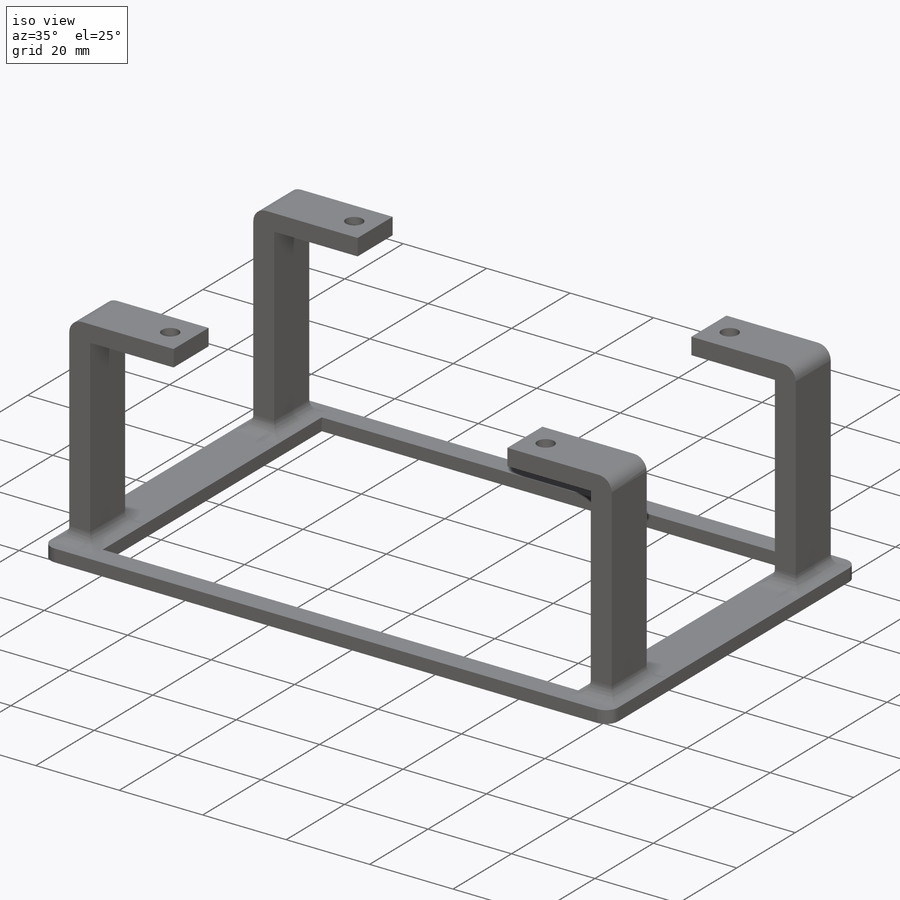
[diagram: iso view]
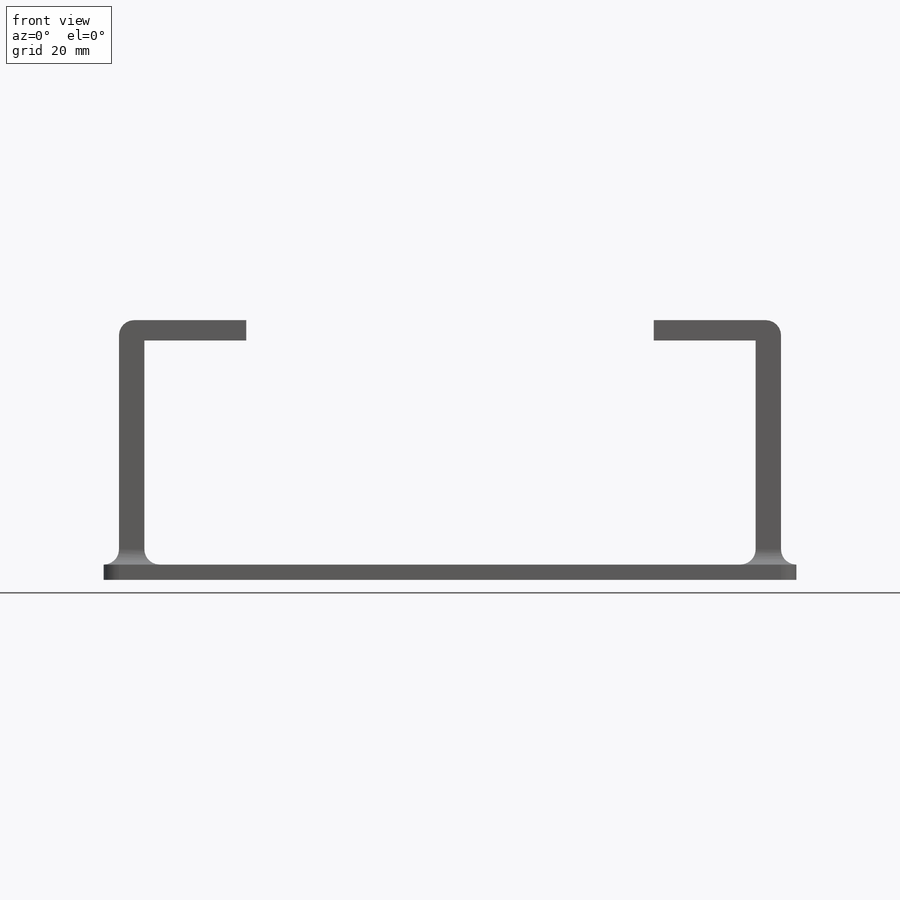
[diagram: front view]
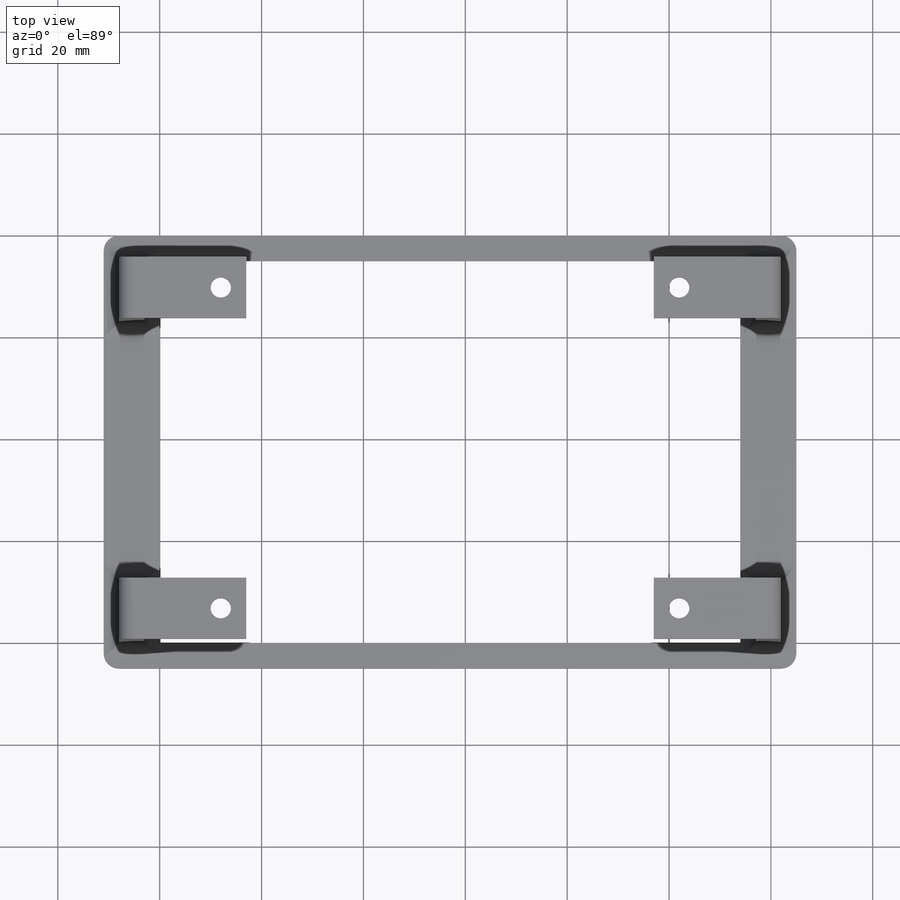
[diagram: top view]
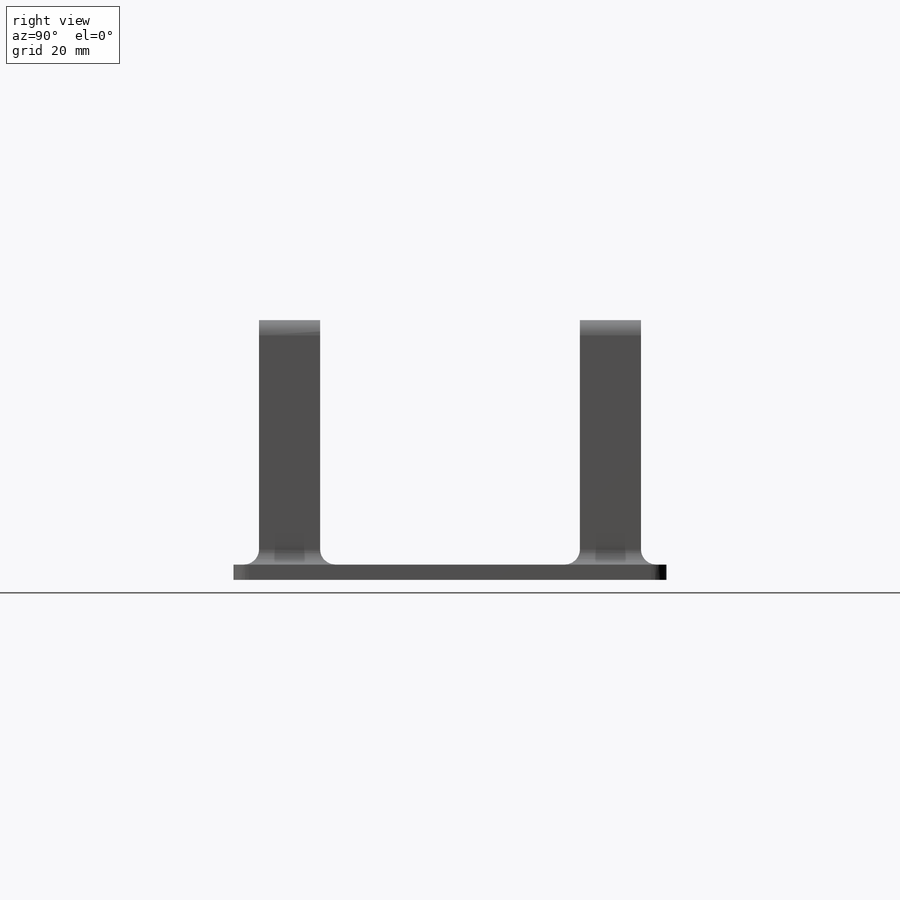
[diagram: right view]
SOLIDWORKS PART (.sldprt)
format: sldprt  version: not decoded by parser v0  size: 271,360 bytes
history: native  units: mm
features: sketch x3, extrude x3, fillet x2, material x1 (+13 scaffold rows collapsed)
feature tree (22):
  scaffold x13  (default folders/planes/origin — collapsed)
  material  "Material <not specified>"
  sketch  "Sketch1"  dims[D1=75.0mm D2=114.0mm D3=0.0mm]
  extrude  "Boss-Extrude1"  Depth=3mm
  sketch  "Sketch2"  dims[D1=5.0mm]
  extrude  "Boss-Extrude2"  Depth=48mm
  fillet  "Fillet1"  Radius=3mm
  sketch  "Sketch3"  dims[D1=5.0mm]
  extrude  "Boss-Extrude3"  Depth=4mm
  fillet  "Fillet2"  Radius=3mm
decode coverage: 8 of 8 modeling features carry decoded parameters
note: suppression state not decoded; provenance and decode notes live in map.json
